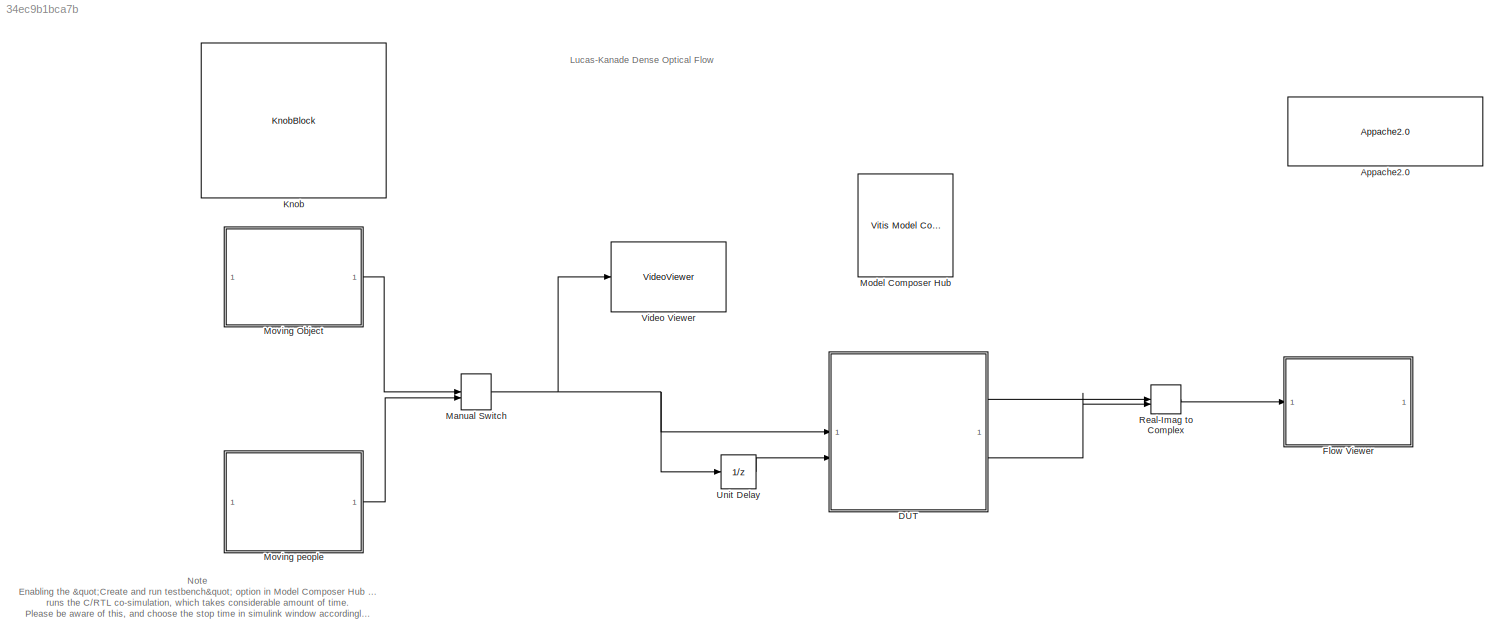
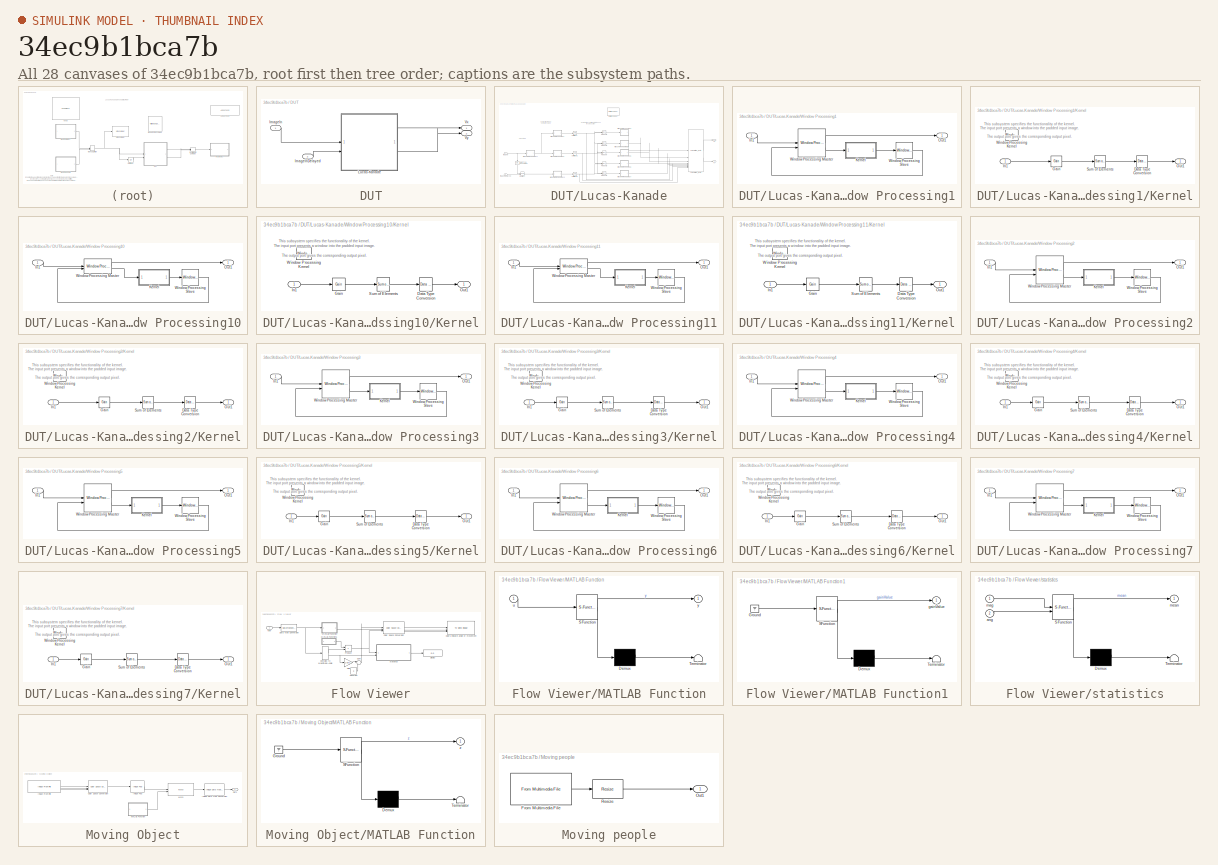
[diagram: thumbnail index - all 28 canvases of the model, root first then tree order]
MODEL slx_34ec9b1bca7b
KIND model
CONFIG AbsTol = auto
CONFIG EnableMultiTasking = on
CONFIG FixedStep = auto
CONFIG MaxStep = auto
CONFIG MinStep = auto
CONFIG PostLoadFcn = xmcHubUpdateInstalledDevice(gcs);
CONFIG RelTol = 1e-3
CONFIG SampleTimeConstraint = Unconstrained
CONFIG SolverName = VariableStepAuto
CONFIG StartTime = 0.0
CONFIG StopTime = inf
WORKSPACE source: mxarray member
WORKSPACE SourceMovingObject = 0
WORKSPACE gainValueHSV = 0.2
BLOCK [Reference] Appache2.0  REF=vmcUtilities/Appache2.0
  SourceBlock = vmcUtilities/Appache2.0
  SourceType = DocBlock
  UserDataPersistent = on
BLOCK [SubSystem] DUT
BLOCK [Inport] DUT/ImageIn
BLOCK [Inport] DUT/ImageInDelayed
  Port = 2
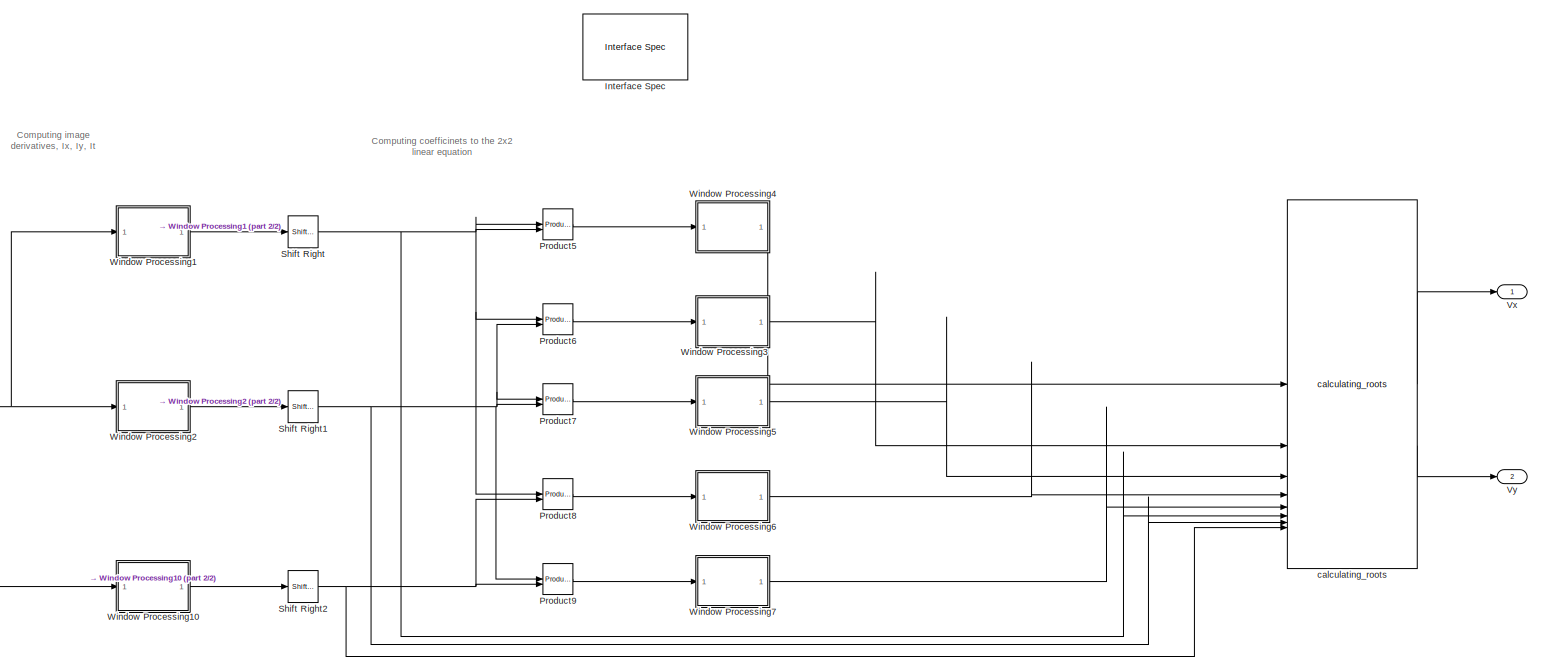
[diagram: DUT/Lucas-Kanade - part 1/2, most of the canvas]
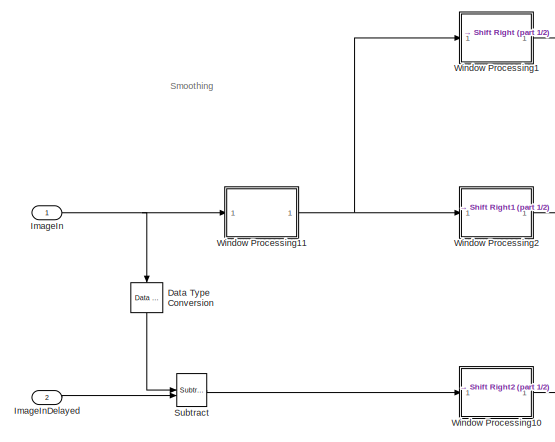
[diagram: DUT/Lucas-Kanade - part 2/2, middle left region]
BLOCK [SubSystem] DUT/Lucas-Kanade
BLOCK [Reference] DUT/Lucas-Kanade/Data Type Conversion  REF=hlsBasic/Data Type Conversion
  NameLocation = left
  SourceBlock = hlsBasic/Data Type Conversion
  SourceType = DTC
BLOCK [Inport] DUT/Lucas-Kanade/ImageIn
BLOCK [Inport] DUT/Lucas-Kanade/ImageInDelayed
  Port = 2
BLOCK [Reference] DUT/Lucas-Kanade/Interface Spec  REF=hlsUtilities/Interface Spec
  SourceBlock = hlsUtilities/Interface Spec
  SourceType = Interface Specification
BLOCK [Reference] DUT/Lucas-Kanade/Product5  REF=hlsBasic/Product
  SourceBlock = hlsBasic/Product
  SourceType = Product
BLOCK [Reference] DUT/Lucas-Kanade/Product6  REF=hlsBasic/Product
  SourceBlock = hlsBasic/Product
  SourceType = Product
BLOCK [Reference] DUT/Lucas-Kanade/Product7  REF=hlsBasic/Product
  SourceBlock = hlsBasic/Product
  SourceType = Product
BLOCK [Reference] DUT/Lucas-Kanade/Product8  REF=hlsBasic/Product
  SourceBlock = hlsBasic/Product
  SourceType = Product
BLOCK [Reference] DUT/Lucas-Kanade/Product9  REF=hlsBasic/Product
  SourceBlock = hlsBasic/Product
  SourceType = Product
BLOCK [Reference] DUT/Lucas-Kanade/Shift Right  REF=hlsBasic/Shift Right
  SourceBlock = hlsBasic/Shift Right
  SourceType = Shift Right
BLOCK [Reference] DUT/Lucas-Kanade/Shift Right1  REF=hlsBasic/Shift Right
  SourceBlock = hlsBasic/Shift Right
  SourceType = Shift Right
BLOCK [Reference] DUT/Lucas-Kanade/Shift Right2  REF=hlsBasic/Shift Right
  SourceBlock = hlsBasic/Shift Right
  SourceType = Shift Right
BLOCK [Reference] DUT/Lucas-Kanade/Subtract  REF=hlsBasic/Subtract
  SourceBlock = hlsBasic/Subtract
  SourceType = Subtract
BLOCK [Outport] DUT/Lucas-Kanade/Vx
BLOCK [Outport] DUT/Lucas-Kanade/Vy
  Port = 2
BLOCK [SubSystem] DUT/Lucas-Kanade/Window Processing1
BLOCK [Inport] DUT/Lucas-Kanade/Window Processing1/In1
BLOCK [SubSystem] DUT/Lucas-Kanade/Window Processing1/Kernel
BLOCK [Reference] DUT/Lucas-Kanade/Window Processing1/Kernel/Data Type Conversion  REF=hlsBasic/Data Type Conversion
  SourceBlock = hlsBasic/Data Type Conversion
  SourceType = DTC
BLOCK [Reference] DUT/Lucas-Kanade/Window Processing1/Kernel/Gain  REF=hlsBasic/Gain
  SourceBlock = hlsBasic/Gain
  SourceType = Gain
BLOCK [Inport] DUT/Lucas-Kanade/Window Processing1/Kernel/In1
BLOCK [Outport] DUT/Lucas-Kanade/Window Processing1/Kernel/Out1
BLOCK [Reference] DUT/Lucas-Kanade/Window Processing1/Kernel/Sum of Elements  REF=hlsBasic/Sum of Elements
  SourceBlock = hlsBasic/Sum of Elements
  SourceType = Sum Of Elements
BLOCK [Reference] DUT/Lucas-Kanade/Window Processing1/Kernel/Window Processing Kernel  REF=hlsBasic/Window Processing
Kernel
  Description = Performs multiplication
  SourceBlock = hlsBasic/Window Processing\nKernel
  SourceType = Window Processing Kernel
BLOCK [Outport] DUT/Lucas-Kanade/Window Processing1/Out1
BLOCK [Reference] DUT/Lucas-Kanade/Window Processing1/Window Processing Master  REF=hlsBasic/Window Processing
Master
  Description = Performs multiplication
  SourceBlock = hlsBasic/Window Processing\nMaster
  SourceType = Window Processing Master
BLOCK [Reference] DUT/Lucas-Kanade/Window Processing1/Window Processing Slave  REF=hlsBasic/Window Processing
Slave
  Description = Performs multiplication
  SourceBlock = hlsBasic/Window Processing\nSlave
  SourceType = Slave
BLOCK [SubSystem] DUT/Lucas-Kanade/Window Processing10
BLOCK [Inport] DUT/Lucas-Kanade/Window Processing10/In1
BLOCK [SubSystem] DUT/Lucas-Kanade/Window Processing10/Kernel
BLOCK [Reference] DUT/Lucas-Kanade/Window Processing10/Kernel/Data Type Conversion  REF=hlsBasic/Data Type Conversion
  SourceBlock = hlsBasic/Data Type Conversion
  SourceType = DTC
BLOCK [Reference] DUT/Lucas-Kanade/Window Processing10/Kernel/Gain  REF=hlsBasic/Gain
  SourceBlock = hlsBasic/Gain
  SourceType = Gain
BLOCK [Inport] DUT/Lucas-Kanade/Window Processing10/Kernel/In1
BLOCK [Outport] DUT/Lucas-Kanade/Window Processing10/Kernel/Out1
BLOCK [Reference] DUT/Lucas-Kanade/Window Processing10/Kernel/Sum of Elements  REF=hlsBasic/Sum of Elements
  SourceBlock = hlsBasic/Sum of Elements
  SourceType = Sum Of Elements
BLOCK [Reference] DUT/Lucas-Kanade/Window Processing10/Kernel/Window Processing Kernel  REF=hlsBasic/Window Processing
Kernel
  Description = Performs multiplication
  SourceBlock = hlsBasic/Window Processing\nKernel
  SourceType = Window Processing Kernel
BLOCK [Outport] DUT/Lucas-Kanade/Window Processing10/Out1
BLOCK [Reference] DUT/Lucas-Kanade/Window Processing10/Window Processing Master  REF=hlsBasic/Window Processing
Master
  Description = Performs multiplication
  SourceBlock = hlsBasic/Window Processing\nMaster
  SourceType = Window Processing Master
BLOCK [Reference] DUT/Lucas-Kanade/Window Processing10/Window Processing Slave  REF=hlsBasic/Window Processing
Slave
  Description = Performs multiplication
  SourceBlock = hlsBasic/Window Processing\nSlave
  SourceType = Slave
BLOCK [SubSystem] DUT/Lucas-Kanade/Window Processing11
BLOCK [Inport] DUT/Lucas-Kanade/Window Processing11/In1
BLOCK [SubSystem] DUT/Lucas-Kanade/Window Processing11/Kernel
BLOCK [Reference] DUT/Lucas-Kanade/Window Processing11/Kernel/Data Type Conversion  REF=hlsBasic/Data Type Conversion
  SourceBlock = hlsBasic/Data Type Conversion
  SourceType = DTC
BLOCK [Reference] DUT/Lucas-Kanade/Window Processing11/Kernel/Gain  REF=hlsBasic/Gain
  SourceBlock = hlsBasic/Gain
  SourceType = Gain
BLOCK [Inport] DUT/Lucas-Kanade/Window Processing11/Kernel/In1
BLOCK [Outport] DUT/Lucas-Kanade/Window Processing11/Kernel/Out1
BLOCK [Reference] DUT/Lucas-Kanade/Window Processing11/Kernel/Sum of Elements  REF=hlsBasic/Sum of Elements
  SourceBlock = hlsBasic/Sum of Elements
  SourceType = Sum Of Elements
BLOCK [Reference] DUT/Lucas-Kanade/Window Processing11/Kernel/Window Processing Kernel  REF=hlsBasic/Window Processing
Kernel
  Description = Performs multiplication
  SourceBlock = hlsBasic/Window Processing\nKernel
  SourceType = Window Processing Kernel
BLOCK [Outport] DUT/Lucas-Kanade/Window Processing11/Out1
BLOCK [Reference] DUT/Lucas-Kanade/Window Processing11/Window Processing Master  REF=hlsBasic/Window Processing
Master
  Description = Performs multiplication
  SourceBlock = hlsBasic/Window Processing\nMaster
  SourceType = Window Processing Master
BLOCK [Reference] DUT/Lucas-Kanade/Window Processing11/Window Processing Slave  REF=hlsBasic/Window Processing
Slave
  Description = Performs multiplication
  SourceBlock = hlsBasic/Window Processing\nSlave
  SourceType = Slave
BLOCK [SubSystem] DUT/Lucas-Kanade/Window Processing2
BLOCK [Inport] DUT/Lucas-Kanade/Window Processing2/In1
BLOCK [SubSystem] DUT/Lucas-Kanade/Window Processing2/Kernel
BLOCK [Reference] DUT/Lucas-Kanade/Window Processing2/Kernel/Data Type Conversion  REF=hlsBasic/Data Type Conversion
  SourceBlock = hlsBasic/Data Type Conversion
  SourceType = DTC
BLOCK [Reference] DUT/Lucas-Kanade/Window Processing2/Kernel/Gain  REF=hlsBasic/Gain
  SourceBlock = hlsBasic/Gain
  SourceType = Gain
BLOCK [Inport] DUT/Lucas-Kanade/Window Processing2/Kernel/In1
BLOCK [Outport] DUT/Lucas-Kanade/Window Processing2/Kernel/Out1
BLOCK [Reference] DUT/Lucas-Kanade/Window Processing2/Kernel/Sum of Elements  REF=hlsBasic/Sum of Elements
  SourceBlock = hlsBasic/Sum of Elements
  SourceType = Sum Of Elements
BLOCK [Reference] DUT/Lucas-Kanade/Window Processing2/Kernel/Window Processing Kernel  REF=hlsBasic/Window Processing
Kernel
  Description = Performs multiplication
  SourceBlock = hlsBasic/Window Processing\nKernel
  SourceType = Window Processing Kernel
BLOCK [Outport] DUT/Lucas-Kanade/Window Processing2/Out1
BLOCK [Reference] DUT/Lucas-Kanade/Window Processing2/Window Processing Master  REF=hlsBasic/Window Processing
Master
  Description = Performs multiplication
  SourceBlock = hlsBasic/Window Processing\nMaster
  SourceType = Window Processing Master
BLOCK [Reference] DUT/Lucas-Kanade/Window Processing2/Window Processing Slave  REF=hlsBasic/Window Processing
Slave
  Description = Performs multiplication
  SourceBlock = hlsBasic/Window Processing\nSlave
  SourceType = Slave
BLOCK [SubSystem] DUT/Lucas-Kanade/Window Processing3
BLOCK [Inport] DUT/Lucas-Kanade/Window Processing3/In1
BLOCK [SubSystem] DUT/Lucas-Kanade/Window Processing3/Kernel
BLOCK [Reference] DUT/Lucas-Kanade/Window Processing3/Kernel/Data Type Conversion  REF=hlsBasic/Data Type Conversion
  SourceBlock = hlsBasic/Data Type Conversion
  SourceType = DTC
BLOCK [Reference] DUT/Lucas-Kanade/Window Processing3/Kernel/Gain  REF=hlsBasic/Gain
  SourceBlock = hlsBasic/Gain
  SourceType = Gain
BLOCK [Inport] DUT/Lucas-Kanade/Window Processing3/Kernel/In1
BLOCK [Outport] DUT/Lucas-Kanade/Window Processing3/Kernel/Out1
BLOCK [Reference] DUT/Lucas-Kanade/Window Processing3/Kernel/Sum of Elements  REF=hlsBasic/Sum of Elements
  SourceBlock = hlsBasic/Sum of Elements
  SourceType = Sum Of Elements
BLOCK [Reference] DUT/Lucas-Kanade/Window Processing3/Kernel/Window Processing Kernel  REF=hlsBasic/Window Processing
Kernel
  Description = Performs multiplication
  SourceBlock = hlsBasic/Window Processing\nKernel
  SourceType = Window Processing Kernel
BLOCK [Outport] DUT/Lucas-Kanade/Window Processing3/Out1
BLOCK [Reference] DUT/Lucas-Kanade/Window Processing3/Window Processing Master  REF=hlsBasic/Window Processing
Master
  Description = Performs multiplication
  SourceBlock = hlsBasic/Window Processing\nMaster
  SourceType = Window Processing Master
BLOCK [Reference] DUT/Lucas-Kanade/Window Processing3/Window Processing Slave  REF=hlsBasic/Window Processing
Slave
  Description = Performs multiplication
  SourceBlock = hlsBasic/Window Processing\nSlave
  SourceType = Slave
BLOCK [SubSystem] DUT/Lucas-Kanade/Window Processing4
BLOCK [Inport] DUT/Lucas-Kanade/Window Processing4/In1
BLOCK [SubSystem] DUT/Lucas-Kanade/Window Processing4/Kernel
BLOCK [Reference] DUT/Lucas-Kanade/Window Processing4/Kernel/Data Type Conversion  REF=hlsBasic/Data Type Conversion
  SourceBlock = hlsBasic/Data Type Conversion
  SourceType = DTC
BLOCK [Reference] DUT/Lucas-Kanade/Window Processing4/Kernel/Gain  REF=hlsBasic/Gain
  SourceBlock = hlsBasic/Gain
  SourceType = Gain
BLOCK [Inport] DUT/Lucas-Kanade/Window Processing4/Kernel/In1
BLOCK [Outport] DUT/Lucas-Kanade/Window Processing4/Kernel/Out1
BLOCK [Reference] DUT/Lucas-Kanade/Window Processing4/Kernel/Sum of Elements  REF=hlsBasic/Sum of Elements
  SourceBlock = hlsBasic/Sum of Elements
  SourceType = Sum Of Elements
BLOCK [Reference] DUT/Lucas-Kanade/Window Processing4/Kernel/Window Processing Kernel  REF=hlsBasic/Window Processing
Kernel
  Description = Performs multiplication
  SourceBlock = hlsBasic/Window Processing\nKernel
  SourceType = Window Processing Kernel
BLOCK [Outport] DUT/Lucas-Kanade/Window Processing4/Out1
BLOCK [Reference] DUT/Lucas-Kanade/Window Processing4/Window Processing Master  REF=hlsBasic/Window Processing
Master
  Description = Performs multiplication
  SourceBlock = hlsBasic/Window Processing\nMaster
  SourceType = Window Processing Master
BLOCK [Reference] DUT/Lucas-Kanade/Window Processing4/Window Processing Slave  REF=hlsBasic/Window Processing
Slave
  Description = Performs multiplication
  SourceBlock = hlsBasic/Window Processing\nSlave
  SourceType = Slave
BLOCK [SubSystem] DUT/Lucas-Kanade/Window Processing5
BLOCK [Inport] DUT/Lucas-Kanade/Window Processing5/In1
BLOCK [SubSystem] DUT/Lucas-Kanade/Window Processing5/Kernel
BLOCK [Reference] DUT/Lucas-Kanade/Window Processing5/Kernel/Data Type Conversion  REF=hlsBasic/Data Type Conversion
  SourceBlock = hlsBasic/Data Type Conversion
  SourceType = DTC
BLOCK [Reference] DUT/Lucas-Kanade/Window Processing5/Kernel/Gain  REF=hlsBasic/Gain
  SourceBlock = hlsBasic/Gain
  SourceType = Gain
BLOCK [Inport] DUT/Lucas-Kanade/Window Processing5/Kernel/In1
BLOCK [Outport] DUT/Lucas-Kanade/Window Processing5/Kernel/Out1
BLOCK [Reference] DUT/Lucas-Kanade/Window Processing5/Kernel/Sum of Elements  REF=hlsBasic/Sum of Elements
  SourceBlock = hlsBasic/Sum of Elements
  SourceType = Sum Of Elements
BLOCK [Reference] DUT/Lucas-Kanade/Window Processing5/Kernel/Window Processing Kernel  REF=hlsBasic/Window Processing
Kernel
  Description = Performs multiplication
  SourceBlock = hlsBasic/Window Processing\nKernel
  SourceType = Window Processing Kernel
BLOCK [Outport] DUT/Lucas-Kanade/Window Processing5/Out1
BLOCK [Reference] DUT/Lucas-Kanade/Window Processing5/Window Processing Master  REF=hlsBasic/Window Processing
Master
  Description = Performs multiplication
  SourceBlock = hlsBasic/Window Processing\nMaster
  SourceType = Window Processing Master
BLOCK [Reference] DUT/Lucas-Kanade/Window Processing5/Window Processing Slave  REF=hlsBasic/Window Processing
Slave
  Description = Performs multiplication
  SourceBlock = hlsBasic/Window Processing\nSlave
  SourceType = Slave
BLOCK [SubSystem] DUT/Lucas-Kanade/Window Processing6
BLOCK [Inport] DUT/Lucas-Kanade/Window Processing6/In1
BLOCK [SubSystem] DUT/Lucas-Kanade/Window Processing6/Kernel
BLOCK [Reference] DUT/Lucas-Kanade/Window Processing6/Kernel/Data Type Conversion  REF=hlsBasic/Data Type Conversion
  SourceBlock = hlsBasic/Data Type Conversion
  SourceType = DTC
BLOCK [Reference] DUT/Lucas-Kanade/Window Processing6/Kernel/Gain  REF=hlsBasic/Gain
  SourceBlock = hlsBasic/Gain
  SourceType = Gain
BLOCK [Inport] DUT/Lucas-Kanade/Window Processing6/Kernel/In1
BLOCK [Outport] DUT/Lucas-Kanade/Window Processing6/Kernel/Out1
BLOCK [Reference] DUT/Lucas-Kanade/Window Processing6/Kernel/Sum of Elements  REF=hlsBasic/Sum of Elements
  SourceBlock = hlsBasic/Sum of Elements
  SourceType = Sum Of Elements
BLOCK [Reference] DUT/Lucas-Kanade/Window Processing6/Kernel/Window Processing Kernel  REF=hlsBasic/Window Processing
Kernel
  Description = Performs multiplication
  SourceBlock = hlsBasic/Window Processing\nKernel
  SourceType = Window Processing Kernel
BLOCK [Outport] DUT/Lucas-Kanade/Window Processing6/Out1
BLOCK [Reference] DUT/Lucas-Kanade/Window Processing6/Window Processing Master  REF=hlsBasic/Window Processing
Master
  Description = Performs multiplication
  SourceBlock = hlsBasic/Window Processing\nMaster
  SourceType = Window Processing Master
BLOCK [Reference] DUT/Lucas-Kanade/Window Processing6/Window Processing Slave  REF=hlsBasic/Window Processing
Slave
  Description = Performs multiplication
  SourceBlock = hlsBasic/Window Processing\nSlave
  SourceType = Slave
BLOCK [SubSystem] DUT/Lucas-Kanade/Window Processing7
BLOCK [Inport] DUT/Lucas-Kanade/Window Processing7/In1
BLOCK [SubSystem] DUT/Lucas-Kanade/Window Processing7/Kernel
BLOCK [Reference] DUT/Lucas-Kanade/Window Processing7/Kernel/Data Type Conversion  REF=hlsBasic/Data Type Conversion
  SourceBlock = hlsBasic/Data Type Conversion
  SourceType = DTC
BLOCK [Reference] DUT/Lucas-Kanade/Window Processing7/Kernel/Gain  REF=hlsBasic/Gain
  SourceBlock = hlsBasic/Gain
  SourceType = Gain
BLOCK [Inport] DUT/Lucas-Kanade/Window Processing7/Kernel/In1
BLOCK [Outport] DUT/Lucas-Kanade/Window Processing7/Kernel/Out1
BLOCK [Reference] DUT/Lucas-Kanade/Window Processing7/Kernel/Sum of Elements  REF=hlsBasic/Sum of Elements
  SourceBlock = hlsBasic/Sum of Elements
  SourceType = Sum Of Elements
BLOCK [Reference] DUT/Lucas-Kanade/Window Processing7/Kernel/Window Processing Kernel  REF=hlsBasic/Window Processing
Kernel
  Description = Performs multiplication
  SourceBlock = hlsBasic/Window Processing\nKernel
  SourceType = Window Processing Kernel
BLOCK [Outport] DUT/Lucas-Kanade/Window Processing7/Out1
BLOCK [Reference] DUT/Lucas-Kanade/Window Processing7/Window Processing Master  REF=hlsBasic/Window Processing
Master
  Description = Performs multiplication
  SourceBlock = hlsBasic/Window Processing\nMaster
  SourceType = Window Processing Master
BLOCK [Reference] DUT/Lucas-Kanade/Window Processing7/Window Processing Slave  REF=hlsBasic/Window Processing
Slave
  Description = Performs multiplication
  SourceBlock = hlsBasic/Window Processing\nSlave
  SourceType = Slave
BLOCK [Reference] DUT/Lucas-Kanade/calculating_roots  REF=OpticalFlowRoots/calculating_roots
  SourceBlock = OpticalFlowRoots/calculating_roots
  SourceType = Import Function
BLOCK [Outport] DUT/Vx
BLOCK [Outport] DUT/Vy
  Port = 2
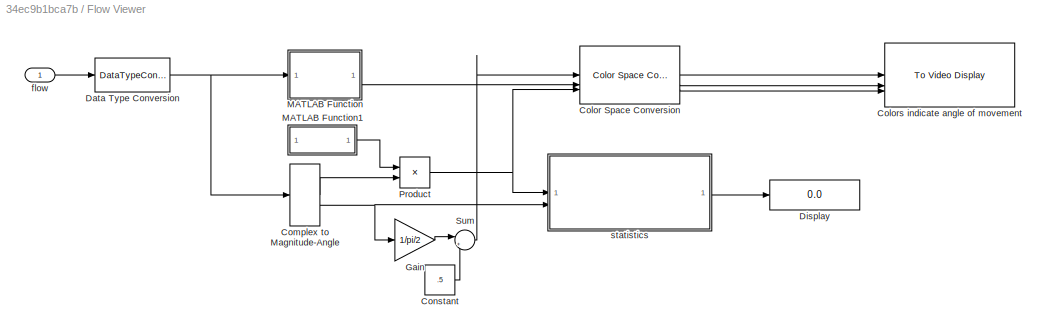
BLOCK [SubSystem] Flow Viewer
BLOCK [Reference] Flow Viewer/Color Space Conversion  REF=visionconversions/Color Space
 Conversion
  SourceBlock = visionconversions/Color Space\n Conversion
  SourceType = Color Space Conversion
BLOCK [Reference] Flow Viewer/Colors indicate angle of movement  REF=visionsinks/To Video Display
  SourceBlock = visionsinks/To Video Display
  SourceType = To Video Display
BLOCK [ComplexToMagnitudeAngle] Flow Viewer/Complex to Magnitude-Angle
BLOCK [Constant] Flow Viewer/Constant
  Value = .5
BLOCK [DataTypeConversion] Flow Viewer/Data Type Conversion
  OutDataTypeStr = double
  RndMeth = Floor
  SaturateOnIntegerOverflow = off
BLOCK [Display] Flow Viewer/Display
  Decimation = 1
BLOCK [Gain] Flow Viewer/Gain
  Gain = 1/pi/2
  OutDataTypeStr = double
BLOCK [SubSystem] Flow Viewer/MATLAB Function
  ErrorFcn = Stateflow.Translate.translate
  PermitHierarchicalResolution = ExplicitOnly
  SFBlockType = MATLAB Function
  TreatAsAtomicUnit = on
BLOCK [Demux] Flow Viewer/MATLAB Function/ Demux 
  Outputs = 1
BLOCK [S-Function] Flow Viewer/MATLAB Function/ SFunction 
  EnableBusSupport = off
  FunctionName = sf_sfun
  PortCounts = [1 2]
  SFcnIsStateOwnerBlock = off
  SFunctionDeploymentMode = off
  Tag = Stateflow S-Function 5
BLOCK [Terminator] Flow Viewer/MATLAB Function/ Terminator 
BLOCK [Inport] Flow Viewer/MATLAB Function/u
BLOCK [Outport] Flow Viewer/MATLAB Function/y
BLOCK [SubSystem] Flow Viewer/MATLAB Function1
  ErrorFcn = Stateflow.Translate.translate
  PermitHierarchicalResolution = ExplicitOnly
  SFBlockType = MATLAB Function
  TreatAsAtomicUnit = on
BLOCK [Demux] Flow Viewer/MATLAB Function1/ Demux 
  Outputs = 1
BLOCK [Ground] Flow Viewer/MATLAB Function1/ Ground 
BLOCK [S-Function] Flow Viewer/MATLAB Function1/ SFunction 
  EnableBusSupport = off
  FunctionName = sf_sfun
  PortCounts = [1 2]
  SFcnIsStateOwnerBlock = off
  SFunctionDeploymentMode = off
  Tag = Stateflow S-Function 2
BLOCK [Terminator] Flow Viewer/MATLAB Function1/ Terminator 
BLOCK [Outport] Flow Viewer/MATLAB Function1/gainValue
BLOCK [Product] Flow Viewer/Product
BLOCK [Sum] Flow Viewer/Sum
  Inputs = |++
BLOCK [Inport] Flow Viewer/flow
BLOCK [SubSystem] Flow Viewer/statistics
  ErrorFcn = Stateflow.Translate.translate
  PermitHierarchicalResolution = ExplicitOnly
  SFBlockType = MATLAB Function
  TreatAsAtomicUnit = on
BLOCK [Demux] Flow Viewer/statistics/ Demux 
  Outputs = 1
BLOCK [S-Function] Flow Viewer/statistics/ SFunction 
  EnableBusSupport = off
  FunctionName = sf_sfun
  PortCounts = [2 2]
  SFcnIsStateOwnerBlock = off
  SFunctionDeploymentMode = off
  Tag = Stateflow S-Function 13
BLOCK [Terminator] Flow Viewer/statistics/ Terminator 
BLOCK [Inport] Flow Viewer/statistics/ang
  Port = 2
BLOCK [Inport] Flow Viewer/statistics/mag
BLOCK [Outport] Flow Viewer/statistics/mean
BLOCK [KnobBlock] Knob
  ScaleMax = 180
  ScaleMin = -180
  TickInterval = 45
BLOCK [ManualSwitch] Manual Switch
  CurrentSetting = 0
  OpenFcn = switchCallback(gcb)
BLOCK [Reference] Model Composer Hub  REF=vmcUtilities/Vitis Model Composer Hub
  SourceBlock = vmcUtilities/Vitis Model Composer Hub
  SourceType = VMC Hub
  Tag = genX
  UserDataPersistent = on
BLOCK [SubSystem] Moving Object
BLOCK [Reference] Moving Object/Color Space Conversion  REF=visionconversions/Color Space
 Conversion
  SourceBlock = visionconversions/Color Space\n Conversion
  SourceType = Color Space Conversion
BLOCK [Reference] Moving Object/Image Data Type Conversion  REF=visionconversions/Image Data Type
Conversion
  SourceBlock = visionconversions/Image Data Type\nConversion
  SourceType = Image Data Type Conversion
BLOCK [Reference] Moving Object/Image From File  REF=visionsources/Image From File
  SourceBlock = visionsources/Image From File
  SourceType = Image From File
  Tag = vipblks_nd
BLOCK [Reference] Moving Object/Image Pad  REF=visionutilities/Image Pad
  SourceBlock = visionutilities/Image Pad
  SourceType = Image Pad
BLOCK [SubSystem] Moving Object/MATLAB Function
  ErrorFcn = Stateflow.Translate.translate
  PermitHierarchicalResolution = ExplicitOnly
  SFBlockType = MATLAB Function
  TreatAsAtomicUnit = on
BLOCK [Demux] Moving Object/MATLAB Function/ Demux 
  Outputs = 1
BLOCK [Ground] Moving Object/MATLAB Function/ Ground 
BLOCK [S-Function] Moving Object/MATLAB Function/ SFunction 
  EnableBusSupport = off
  FunctionName = sf_sfun
  Parameters = Angle
  PortCounts = [1 2]
  SFcnIsStateOwnerBlock = off
  SFunctionDeploymentMode = off
  Tag = Stateflow S-Function 1
BLOCK [Terminator] Moving Object/MATLAB Function/ Terminator 
BLOCK [Outport] Moving Object/MATLAB Function/z
BLOCK [Outport] Moving Object/Out1
BLOCK [Reference] Moving Object/Warp  REF=visiongeotforms/Warp
  SourceBlock = visiongeotforms/Warp
  SourceType = vision.internal.blocks.Warp
BLOCK [SubSystem] Moving people
BLOCK [Reference] Moving people/From Multimedia File  REF=dspvision/From Multimedia File
  SourceBlock = dspvision/From Multimedia File
  SourceType = From Multimedia File
BLOCK [Outport] Moving people/Out1
BLOCK [Reference] Moving people/Resize  REF=visiongeotforms/Resize
  SourceBlock = visiongeotforms/Resize
  SourceType = Resize
BLOCK [RealImagToComplex] Real-Imag to Complex
BLOCK [UnitDelay] Unit Delay
  HasFrameUpgradeWarning = on
  SampleTime = -1
BLOCK [VideoViewer] Video Viewer
  FigPos = [735 515 863 363]
  ScopeSpecificationString = vipscopes.VideoViewerScopeCfg('CurrentConfiguration', extmgr.ConfigurationSet(extmgr.Configuration('Core','General UI',true),extmgr.Configuration('Core','Source UI',true),extmgr.Configuration('Sources','WiredSimulink',true),extmgr.Configuration('Visuals','Video',true),extmgr.Configuration('Tools','Image Navigation Tools',true,'FitToView',true),extmgr.Configuration('Tools','Image Tool',true),extmgr...<+92ch>
  colormapValue = gray(256)
ANNOTATION (root): Note Enabling the "Create and run testbench" option in Model Composer Hub block runs the C/RTL co-simulation, which takes considerable amount of time. Please be aware of this, and choose the stop time in simulink window accordingly.
ANNOTATION (root): Lucas-Kanade Dense Optical Flow
ANNOTATION DUT/Lucas-Kanade: Computing coefficinets to the 2x2 linear equation
ANNOTATION DUT/Lucas-Kanade: Computing image derivatives, Ix, Iy, It
ANNOTATION DUT/Lucas-Kanade: Smoothing
ANNOTATION DUT/Lucas-Kanade/Window Processing1/Kernel: This subsystem specifies the functionality of the kernel. The input port presents a window into the padded input image. The output port gives the corresponding output pixel.
ANNOTATION DUT/Lucas-Kanade/Window Processing10/Kernel: This subsystem specifies the functionality of the kernel. The input port presents a window into the padded input image. The output port gives the corresponding output pixel.
ANNOTATION DUT/Lucas-Kanade/Window Processing11/Kernel: This subsystem specifies the functionality of the kernel. The input port presents a window into the padded input image. The output port gives the corresponding output pixel.
ANNOTATION DUT/Lucas-Kanade/Window Processing2/Kernel: This subsystem specifies the functionality of the kernel. The input port presents a window into the padded input image. The output port gives the corresponding output pixel.
ANNOTATION DUT/Lucas-Kanade/Window Processing3/Kernel: This subsystem specifies the functionality of the kernel. The input port presents a window into the padded input image. The output port gives the corresponding output pixel.
ANNOTATION DUT/Lucas-Kanade/Window Processing4/Kernel: This subsystem specifies the functionality of the kernel. The input port presents a window into the padded input image. The output port gives the corresponding output pixel.
ANNOTATION DUT/Lucas-Kanade/Window Processing5/Kernel: This subsystem specifies the functionality of the kernel. The input port presents a window into the padded input image. The output port gives the corresponding output pixel.
ANNOTATION DUT/Lucas-Kanade/Window Processing6/Kernel: This subsystem specifies the functionality of the kernel. The input port presents a window into the padded input image. The output port gives the corresponding output pixel.
ANNOTATION DUT/Lucas-Kanade/Window Processing7/Kernel: This subsystem specifies the functionality of the kernel. The input port presents a window into the padded input image. The output port gives the corresponding output pixel.
LINE DUT/ImageIn:1 -> DUT/Lucas-Kanade:1
LINE DUT/ImageInDelayed:1 -> DUT/Lucas-Kanade:2
LINE DUT/Lucas-Kanade/Data Type Conversion:1 -> DUT/Lucas-Kanade/Subtract:1
NET DUT/Lucas-Kanade/ImageIn:1 -> DUT/Lucas-Kanade/Data Type Conversion:1, DUT/Lucas-Kanade/Window Processing11:1
LINE DUT/Lucas-Kanade/ImageInDelayed:1 -> DUT/Lucas-Kanade/Subtract:2
LINE DUT/Lucas-Kanade/Product5:1 -> DUT/Lucas-Kanade/Window Processing4:1
LINE DUT/Lucas-Kanade/Product6:1 -> DUT/Lucas-Kanade/Window Processing3:1
LINE DUT/Lucas-Kanade/Product7:1 -> DUT/Lucas-Kanade/Window Processing5:1
LINE DUT/Lucas-Kanade/Product8:1 -> DUT/Lucas-Kanade/Window Processing6:1
LINE DUT/Lucas-Kanade/Product9:1 -> DUT/Lucas-Kanade/Window Processing7:1
NET DUT/Lucas-Kanade/Shift Right1:1 -> DUT/Lucas-Kanade/Product6:2, DUT/Lucas-Kanade/Product7:1, DUT/Lucas-Kanade/Product7:2, DUT/Lucas-Kanade/Product9:1, DUT/Lucas-Kanade/calculating_roots:7
NET DUT/Lucas-Kanade/Shift Right2:1 -> DUT/Lucas-Kanade/Product8:2, DUT/Lucas-Kanade/Product9:2, DUT/Lucas-Kanade/calculating_roots:8
NET DUT/Lucas-Kanade/Shift Right:1 -> DUT/Lucas-Kanade/Product5:1, DUT/Lucas-Kanade/Product5:2, DUT/Lucas-Kanade/Product6:1, DUT/Lucas-Kanade/Product8:1, DUT/Lucas-Kanade/calculating_roots:6
LINE DUT/Lucas-Kanade/Subtract:1 -> DUT/Lucas-Kanade/Window Processing10:1
LINE DUT/Lucas-Kanade/Window Processing1/In1:1 -> DUT/Lucas-Kanade/Window Processing1/Window Processing Master:1
LINE DUT/Lucas-Kanade/Window Processing1/Kernel/Data Type Conversion:1 -> DUT/Lucas-Kanade/Window Processing1/Kernel/Out1:1
LINE DUT/Lucas-Kanade/Window Processing1/Kernel/Gain:1 -> DUT/Lucas-Kanade/Window Processing1/Kernel/Sum of Elements:1
LINE DUT/Lucas-Kanade/Window Processing1/Kernel/In1:1 -> DUT/Lucas-Kanade/Window Processing1/Kernel/Gain:1
LINE DUT/Lucas-Kanade/Window Processing1/Kernel/Sum of Elements:1 -> DUT/Lucas-Kanade/Window Processing1/Kernel/Data Type Conversion:1
LINE DUT/Lucas-Kanade/Window Processing1/Kernel:1 -> DUT/Lucas-Kanade/Window Processing1/Window Processing Slave:1
LINE DUT/Lucas-Kanade/Window Processing1/Window Processing Master:1 -> DUT/Lucas-Kanade/Window Processing1/Out1:1
LINE DUT/Lucas-Kanade/Window Processing1/Window Processing Master:2 -> DUT/Lucas-Kanade/Window Processing1/Kernel:1
LINE DUT/Lucas-Kanade/Window Processing1/Window Processing Slave:1 -> DUT/Lucas-Kanade/Window Processing1/Window Processing Master:2
LINE DUT/Lucas-Kanade/Window Processing10/In1:1 -> DUT/Lucas-Kanade/Window Processing10/Window Processing Master:1
LINE DUT/Lucas-Kanade/Window Processing10/Kernel/Data Type Conversion:1 -> DUT/Lucas-Kanade/Window Processing10/Kernel/Out1:1
LINE DUT/Lucas-Kanade/Window Processing10/Kernel/Gain:1 -> DUT/Lucas-Kanade/Window Processing10/Kernel/Sum of Elements:1
LINE DUT/Lucas-Kanade/Window Processing10/Kernel/In1:1 -> DUT/Lucas-Kanade/Window Processing10/Kernel/Gain:1
LINE DUT/Lucas-Kanade/Window Processing10/Kernel/Sum of Elements:1 -> DUT/Lucas-Kanade/Window Processing10/Kernel/Data Type Conversion:1
LINE DUT/Lucas-Kanade/Window Processing10/Kernel:1 -> DUT/Lucas-Kanade/Window Processing10/Window Processing Slave:1
LINE DUT/Lucas-Kanade/Window Processing10/Window Processing Master:1 -> DUT/Lucas-Kanade/Window Processing10/Out1:1
LINE DUT/Lucas-Kanade/Window Processing10/Window Processing Master:2 -> DUT/Lucas-Kanade/Window Processing10/Kernel:1
LINE DUT/Lucas-Kanade/Window Processing10/Window Processing Slave:1 -> DUT/Lucas-Kanade/Window Processing10/Window Processing Master:2
LINE DUT/Lucas-Kanade/Window Processing10:1 -> DUT/Lucas-Kanade/Shift Right2:1
LINE DUT/Lucas-Kanade/Window Processing11/In1:1 -> DUT/Lucas-Kanade/Window Processing11/Window Processing Master:1
LINE DUT/Lucas-Kanade/Window Processing11/Kernel/Data Type Conversion:1 -> DUT/Lucas-Kanade/Window Processing11/Kernel/Out1:1
LINE DUT/Lucas-Kanade/Window Processing11/Kernel/Gain:1 -> DUT/Lucas-Kanade/Window Processing11/Kernel/Sum of Elements:1
LINE DUT/Lucas-Kanade/Window Processing11/Kernel/In1:1 -> DUT/Lucas-Kanade/Window Processing11/Kernel/Gain:1
LINE DUT/Lucas-Kanade/Window Processing11/Kernel/Sum of Elements:1 -> DUT/Lucas-Kanade/Window Processing11/Kernel/Data Type Conversion:1
LINE DUT/Lucas-Kanade/Window Processing11/Kernel:1 -> DUT/Lucas-Kanade/Window Processing11/Window Processing Slave:1
LINE DUT/Lucas-Kanade/Window Processing11/Window Processing Master:1 -> DUT/Lucas-Kanade/Window Processing11/Out1:1
LINE DUT/Lucas-Kanade/Window Processing11/Window Processing Master:2 -> DUT/Lucas-Kanade/Window Processing11/Kernel:1
LINE DUT/Lucas-Kanade/Window Processing11/Window Processing Slave:1 -> DUT/Lucas-Kanade/Window Processing11/Window Processing Master:2
NET DUT/Lucas-Kanade/Window Processing11:1 -> DUT/Lucas-Kanade/Window Processing1:1, DUT/Lucas-Kanade/Window Processing2:1
LINE DUT/Lucas-Kanade/Window Processing1:1 -> DUT/Lucas-Kanade/Shift Right:1
LINE DUT/Lucas-Kanade/Window Processing2/In1:1 -> DUT/Lucas-Kanade/Window Processing2/Window Processing Master:1
LINE DUT/Lucas-Kanade/Window Processing2/Kernel/Data Type Conversion:1 -> DUT/Lucas-Kanade/Window Processing2/Kernel/Out1:1
LINE DUT/Lucas-Kanade/Window Processing2/Kernel/Gain:1 -> DUT/Lucas-Kanade/Window Processing2/Kernel/Sum of Elements:1
LINE DUT/Lucas-Kanade/Window Processing2/Kernel/In1:1 -> DUT/Lucas-Kanade/Window Processing2/Kernel/Gain:1
LINE DUT/Lucas-Kanade/Window Processing2/Kernel/Sum of Elements:1 -> DUT/Lucas-Kanade/Window Processing2/Kernel/Data Type Conversion:1
LINE DUT/Lucas-Kanade/Window Processing2/Kernel:1 -> DUT/Lucas-Kanade/Window Processing2/Window Processing Slave:1
LINE DUT/Lucas-Kanade/Window Processing2/Window Processing Master:1 -> DUT/Lucas-Kanade/Window Processing2/Out1:1
LINE DUT/Lucas-Kanade/Window Processing2/Window Processing Master:2 -> DUT/Lucas-Kanade/Window Processing2/Kernel:1
LINE DUT/Lucas-Kanade/Window Processing2/Window Processing Slave:1 -> DUT/Lucas-Kanade/Window Processing2/Window Processing Master:2
LINE DUT/Lucas-Kanade/Window Processing2:1 -> DUT/Lucas-Kanade/Shift Right1:1
LINE DUT/Lucas-Kanade/Window Processing3/In1:1 -> DUT/Lucas-Kanade/Window Processing3/Window Processing Master:1
LINE DUT/Lucas-Kanade/Window Processing3/Kernel/Data Type Conversion:1 -> DUT/Lucas-Kanade/Window Processing3/Kernel/Out1:1
LINE DUT/Lucas-Kanade/Window Processing3/Kernel/Gain:1 -> DUT/Lucas-Kanade/Window Processing3/Kernel/Sum of Elements:1
LINE DUT/Lucas-Kanade/Window Processing3/Kernel/In1:1 -> DUT/Lucas-Kanade/Window Processing3/Kernel/Gain:1
LINE DUT/Lucas-Kanade/Window Processing3/Kernel/Sum of Elements:1 -> DUT/Lucas-Kanade/Window Processing3/Kernel/Data Type Conversion:1
LINE DUT/Lucas-Kanade/Window Processing3/Kernel:1 -> DUT/Lucas-Kanade/Window Processing3/Window Processing Slave:1
LINE DUT/Lucas-Kanade/Window Processing3/Window Processing Master:1 -> DUT/Lucas-Kanade/Window Processing3/Out1:1
LINE DUT/Lucas-Kanade/Window Processing3/Window Processing Master:2 -> DUT/Lucas-Kanade/Window Processing3/Kernel:1
LINE DUT/Lucas-Kanade/Window Processing3/Window Processing Slave:1 -> DUT/Lucas-Kanade/Window Processing3/Window Processing Master:2
LINE DUT/Lucas-Kanade/Window Processing3:1 -> DUT/Lucas-Kanade/calculating_roots:2
LINE DUT/Lucas-Kanade/Window Processing4/In1:1 -> DUT/Lucas-Kanade/Window Processing4/Window Processing Master:1
LINE DUT/Lucas-Kanade/Window Processing4/Kernel/Data Type Conversion:1 -> DUT/Lucas-Kanade/Window Processing4/Kernel/Out1:1
LINE DUT/Lucas-Kanade/Window Processing4/Kernel/Gain:1 -> DUT/Lucas-Kanade/Window Processing4/Kernel/Sum of Elements:1
LINE DUT/Lucas-Kanade/Window Processing4/Kernel/In1:1 -> DUT/Lucas-Kanade/Window Processing4/Kernel/Gain:1
LINE DUT/Lucas-Kanade/Window Processing4/Kernel/Sum of Elements:1 -> DUT/Lucas-Kanade/Window Processing4/Kernel/Data Type Conversion:1
LINE DUT/Lucas-Kanade/Window Processing4/Kernel:1 -> DUT/Lucas-Kanade/Window Processing4/Window Processing Slave:1
LINE DUT/Lucas-Kanade/Window Processing4/Window Processing Master:1 -> DUT/Lucas-Kanade/Window Processing4/Out1:1
LINE DUT/Lucas-Kanade/Window Processing4/Window Processing Master:2 -> DUT/Lucas-Kanade/Window Processing4/Kernel:1
LINE DUT/Lucas-Kanade/Window Processing4/Window Processing Slave:1 -> DUT/Lucas-Kanade/Window Processing4/Window Processing Master:2
LINE DUT/Lucas-Kanade/Window Processing4:1 -> DUT/Lucas-Kanade/calculating_roots:1
LINE DUT/Lucas-Kanade/Window Processing5/In1:1 -> DUT/Lucas-Kanade/Window Processing5/Window Processing Master:1
LINE DUT/Lucas-Kanade/Window Processing5/Kernel/Data Type Conversion:1 -> DUT/Lucas-Kanade/Window Processing5/Kernel/Out1:1
LINE DUT/Lucas-Kanade/Window Processing5/Kernel/Gain:1 -> DUT/Lucas-Kanade/Window Processing5/Kernel/Sum of Elements:1
LINE DUT/Lucas-Kanade/Window Processing5/Kernel/In1:1 -> DUT/Lucas-Kanade/Window Processing5/Kernel/Gain:1
LINE DUT/Lucas-Kanade/Window Processing5/Kernel/Sum of Elements:1 -> DUT/Lucas-Kanade/Window Processing5/Kernel/Data Type Conversion:1
LINE DUT/Lucas-Kanade/Window Processing5/Kernel:1 -> DUT/Lucas-Kanade/Window Processing5/Window Processing Slave:1
LINE DUT/Lucas-Kanade/Window Processing5/Window Processing Master:1 -> DUT/Lucas-Kanade/Window Processing5/Out1:1
LINE DUT/Lucas-Kanade/Window Processing5/Window Processing Master:2 -> DUT/Lucas-Kanade/Window Processing5/Kernel:1
LINE DUT/Lucas-Kanade/Window Processing5/Window Processing Slave:1 -> DUT/Lucas-Kanade/Window Processing5/Window Processing Master:2
LINE DUT/Lucas-Kanade/Window Processing5:1 -> DUT/Lucas-Kanade/calculating_roots:3
LINE DUT/Lucas-Kanade/Window Processing6/In1:1 -> DUT/Lucas-Kanade/Window Processing6/Window Processing Master:1
LINE DUT/Lucas-Kanade/Window Processing6/Kernel/Data Type Conversion:1 -> DUT/Lucas-Kanade/Window Processing6/Kernel/Out1:1
LINE DUT/Lucas-Kanade/Window Processing6/Kernel/Gain:1 -> DUT/Lucas-Kanade/Window Processing6/Kernel/Sum of Elements:1
LINE DUT/Lucas-Kanade/Window Processing6/Kernel/In1:1 -> DUT/Lucas-Kanade/Window Processing6/Kernel/Gain:1
LINE DUT/Lucas-Kanade/Window Processing6/Kernel/Sum of Elements:1 -> DUT/Lucas-Kanade/Window Processing6/Kernel/Data Type Conversion:1
LINE DUT/Lucas-Kanade/Window Processing6/Kernel:1 -> DUT/Lucas-Kanade/Window Processing6/Window Processing Slave:1
LINE DUT/Lucas-Kanade/Window Processing6/Window Processing Master:1 -> DUT/Lucas-Kanade/Window Processing6/Out1:1
LINE DUT/Lucas-Kanade/Window Processing6/Window Processing Master:2 -> DUT/Lucas-Kanade/Window Processing6/Kernel:1
LINE DUT/Lucas-Kanade/Window Processing6/Window Processing Slave:1 -> DUT/Lucas-Kanade/Window Processing6/Window Processing Master:2
LINE DUT/Lucas-Kanade/Window Processing6:1 -> DUT/Lucas-Kanade/calculating_roots:4
LINE DUT/Lucas-Kanade/Window Processing7/In1:1 -> DUT/Lucas-Kanade/Window Processing7/Window Processing Master:1
LINE DUT/Lucas-Kanade/Window Processing7/Kernel/Data Type Conversion:1 -> DUT/Lucas-Kanade/Window Processing7/Kernel/Out1:1
LINE DUT/Lucas-Kanade/Window Processing7/Kernel/Gain:1 -> DUT/Lucas-Kanade/Window Processing7/Kernel/Sum of Elements:1
LINE DUT/Lucas-Kanade/Window Processing7/Kernel/In1:1 -> DUT/Lucas-Kanade/Window Processing7/Kernel/Gain:1
LINE DUT/Lucas-Kanade/Window Processing7/Kernel/Sum of Elements:1 -> DUT/Lucas-Kanade/Window Processing7/Kernel/Data Type Conversion:1
LINE DUT/Lucas-Kanade/Window Processing7/Kernel:1 -> DUT/Lucas-Kanade/Window Processing7/Window Processing Slave:1
LINE DUT/Lucas-Kanade/Window Processing7/Window Processing Master:1 -> DUT/Lucas-Kanade/Window Processing7/Out1:1
LINE DUT/Lucas-Kanade/Window Processing7/Window Processing Master:2 -> DUT/Lucas-Kanade/Window Processing7/Kernel:1
LINE DUT/Lucas-Kanade/Window Processing7/Window Processing Slave:1 -> DUT/Lucas-Kanade/Window Processing7/Window Processing Master:2
LINE DUT/Lucas-Kanade/Window Processing7:1 -> DUT/Lucas-Kanade/calculating_roots:5
LINE DUT/Lucas-Kanade/calculating_roots:1 -> DUT/Lucas-Kanade/Vx:1
LINE DUT/Lucas-Kanade/calculating_roots:2 -> DUT/Lucas-Kanade/Vy:1
LINE DUT/Lucas-Kanade:1 -> DUT/Vx:1
LINE DUT/Lucas-Kanade:2 -> DUT/Vy:1
LINE DUT:1 -> Real-Imag to Complex:1
LINE DUT:2 -> Real-Imag to Complex:2
LINE Flow Viewer/Color Space Conversion:1 -> Flow Viewer/Colors indicate angle of movement:1
LINE Flow Viewer/Color Space Conversion:2 -> Flow Viewer/Colors indicate angle of movement:2
LINE Flow Viewer/Color Space Conversion:3 -> Flow Viewer/Colors indicate angle of movement:3
LINE Flow Viewer/Complex to Magnitude-Angle:1 -> Flow Viewer/Product:2
NET Flow Viewer/Complex to Magnitude-Angle:2 -> Flow Viewer/Gain:1, Flow Viewer/statistics:2
LINE Flow Viewer/Constant:1 -> Flow Viewer/Sum:2
NET Flow Viewer/Data Type Conversion:1 -> Flow Viewer/Complex to Magnitude-Angle:1, Flow Viewer/MATLAB Function:1
LINE Flow Viewer/Gain:1 -> Flow Viewer/Sum:1
LINE Flow Viewer/MATLAB Function1:1 -> Flow Viewer/Product:1
LINE Flow Viewer/MATLAB Function:1 -> Flow Viewer/Color Space Conversion:2
NET Flow Viewer/Product:1 -> Flow Viewer/Color Space Conversion:3, Flow Viewer/statistics:1
LINE Flow Viewer/Sum:1 -> Flow Viewer/Color Space Conversion:1
LINE Flow Viewer/flow:1 -> Flow Viewer/Data Type Conversion:1
LINE Flow Viewer/statistics:1 -> Flow Viewer/Display:1
NET Manual Switch:1 -> DUT:1, Unit Delay:1, Video Viewer:1
LINE Moving Object/Color Space Conversion:1 -> Moving Object/Image Pad:1
LINE Moving Object/Image Data Type Conversion:1 -> Moving Object/Out1:1
LINE Moving Object/Image From File:1 -> Moving Object/Color Space Conversion:1
LINE Moving Object/Image From File:2 -> Moving Object/Color Space Conversion:2
LINE Moving Object/Image From File:3 -> Moving Object/Color Space Conversion:3
LINE Moving Object/Image Pad:1 -> Moving Object/Warp:1
LINE Moving Object/MATLAB Function:1 -> Moving Object/Warp:2
LINE Moving Object/Warp:1 -> Moving Object/Image Data Type Conversion:1
LINE Moving Object:1 -> Manual Switch:1
LINE Moving people/From Multimedia File:1 -> Moving people/Resize:1
LINE Moving people/Resize:1 -> Moving people/Out1:1
LINE Moving people:1 -> Manual Switch:2
LINE Real-Imag to Complex:1 -> Flow Viewer:1
LINE Unit Delay:1 -> DUT:2
note: NET lines group one-source signal fan-out (src -> all destinations, sorted); 1:1 wires keep LINE
CHART Flow Viewer/MATLAB Function1 states=1 transitions=1
  STATE_LABEL 'eML_blk_kernel()'
  STATE_LABEL "SCRIPT:\nfunction gainValue = fcn()\n%#codegen\ncoder.extrinsic('getGainValue')\n\ngainValue = 0;\n\ngainValue = getGainValue();\n"
CHART Flow Viewer/MATLAB Function states=1 transitions=1
  STATE_LABEL 'eML_blk_kernel()'
  STATE_LABEL 'SCRIPT:\nfunction y = fcn(u)\n\ny = ones(size(u));'
CHART Flow Viewer/statistics states=1 transitions=1
  STATE_LABEL 'eML_blk_kernel()'
  STATE_LABEL "SCRIPT:\nfunction mean = fcn(mag,ang)\n\ncoder.extrinsic('updateHistogram')\n\nweighted_mean = sum(sum(ang.*mag))/sum(sum(mag))/pi*180;\n\n\nmean = weighted_mean;\n\nupdateHistogram(ang(mag~=0));\n\n"
CHART Moving Object/MATLAB Function states=1 transitions=1
  STATE_LABEL 'eML_blk_kernel()'
  STATE_LABEL "SCRIPT:\nfunction z = fcn(Angle)\n\ncoder.extrinsic('isSourceMovingObject')\n\n\npersistent x;\npersistent y;\n\n\n\nshift_x = cos(Angle/180*pi);\nshift_y = sin(Angle/180*pi);\n\nif (isempty(x))\n    x = 0; y = 0;\nend\n\nif ~isSourceMovingObject()\n    x = 0; y = 0;\nend\n\nx = x+shift_x;\ny = y+shift_y;\n\nz = [1 0;\n    0 1;\n    x y];\n"
CHART  states=0 transitions=0
CHART  states=0 transitions=0
CHART  states=0 transitions=0
CHART  states=0 transitions=0
